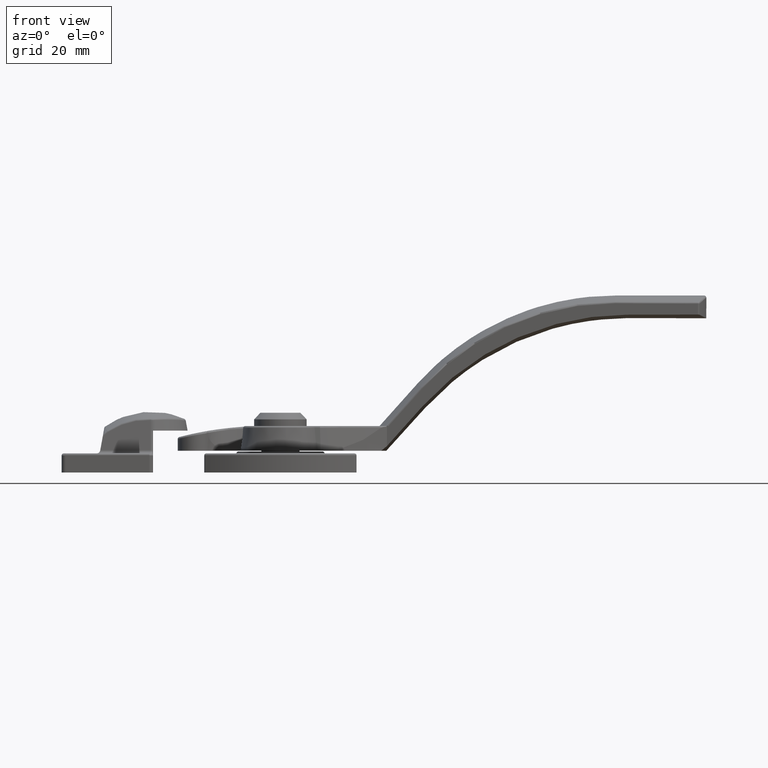
[diagram: clean part render]
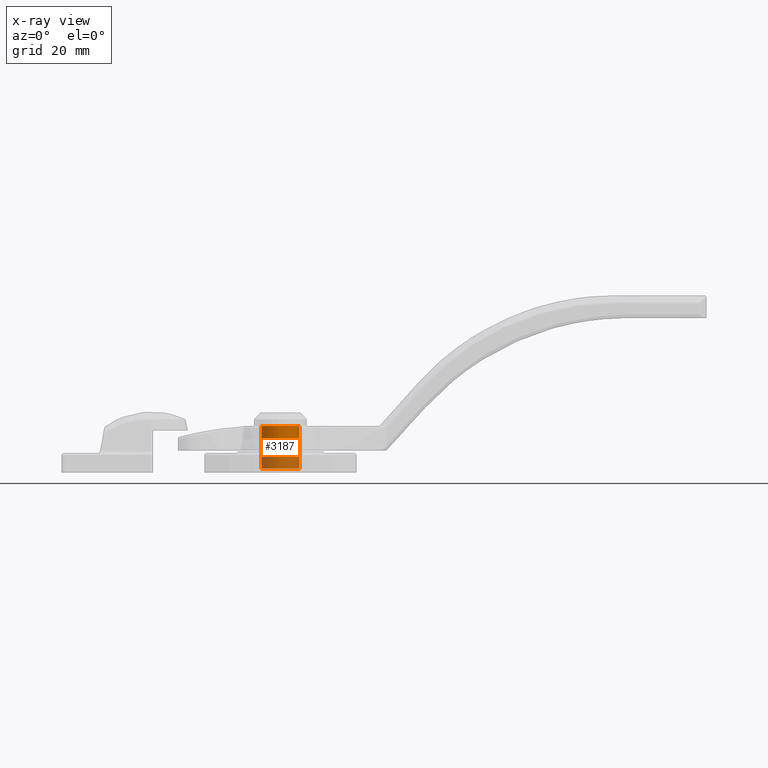
[diagram: x-ray — body ghosted, one internal face saturated and labeled with its STEP entity id]
A machine part, front view, then the same camera in x-ray: the body is ghosted and one INTERNAL B-rep face — a face not visible from any outside direction — is saturated and labeled: STEP entity #3187.
In plain terms, the highlighted cylindrical surface (bore or boss wall) has radius 5 mm, axis along (0, 0, 1).
Its self-contained STEP definition (entity closure, byte-faithful):
#248=FACE_BOUND('',#903,.T.);
#403=CIRCLE('',#3519,5.);
#404=CIRCLE('',#3521,5.);
#507=CYLINDRICAL_SURFACE('',#3520,5.);
#660=FACE_OUTER_BOUND('',#902,.T.);
#902=EDGE_LOOP('',(#2704));
#903=EDGE_LOOP('',(#2705));
#1529=VERTEX_POINT('',#5776);
#1530=VERTEX_POINT('',#5779);
#1932=EDGE_CURVE('',#1529,#1529,#403,.T.);
#1933=EDGE_CURVE('',#1530,#1530,#404,.T.);
#2704=ORIENTED_EDGE('',*,*,#1932,.T.);
#2705=ORIENTED_EDGE('',*,*,#1933,.F.);
#3187=ADVANCED_FACE('',(#660,#248),#507,.T.);
#3519=AXIS2_PLACEMENT_3D('',#5777,#4322,#4323);
#3520=AXIS2_PLACEMENT_3D('',#5778,#4324,#4325);
#3521=AXIS2_PLACEMENT_3D('',#5780,#4326,#4327);
#4322=DIRECTION('center_axis',(-1.28102656687518E-16,1.,0.));
#4323=DIRECTION('ref_axis',(-1.,-1.28102656687518E-16,0.));
#4324=DIRECTION('center_axis',(-1.28102656687518E-16,1.,0.));
#4325=DIRECTION('ref_axis',(-1.,-1.28102656687518E-16,0.));
#4326=DIRECTION('center_axis',(-1.28102656687518E-16,1.,0.));
#4327=DIRECTION('ref_axis',(-1.,-1.28102656687518E-16,0.));
#5776=CARTESIAN_POINT('',(5.,-14.7,-6.12323399573677E-16));
#5777=CARTESIAN_POINT('Origin',(1.88310905330652E-15,-14.7,0.));
#5778=CARTESIAN_POINT('Origin',(1.16573417585641E-15,-9.1,0.));
#5779=CARTESIAN_POINT('',(5.,-3.5,-6.12323399573677E-16));
#5780=CARTESIAN_POINT('Origin',(4.48359298406313E-16,-3.5,0.));